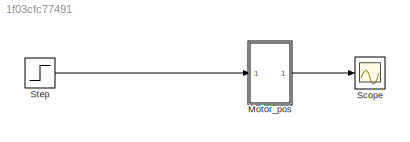
MODEL slx_1f03cfc77491
KIND model
CONFIG AbsTol = auto
CONFIG EnableMultiTasking = off
CONFIG FixedStep = auto
CONFIG MaxStep = auto
CONFIG MinStep = auto
CONFIG RelTol = 1e-3
CONFIG SampleTimeConstraint = Unconstrained
CONFIG Solver = ode15s
CONFIG SolverName = ode15s
CONFIG StartTime = 0.0
CONFIG StopTime = 0.2
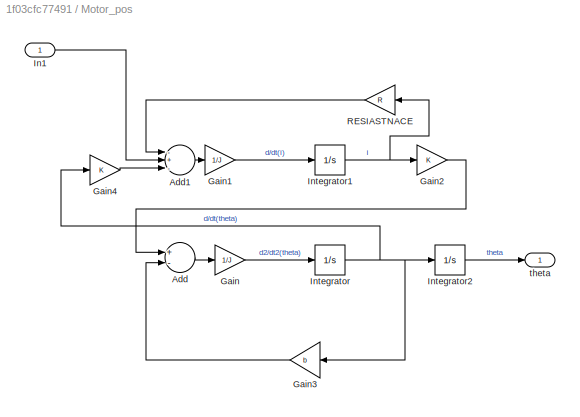
BLOCK [SubSystem] Motor_pos
  Ports = [1, 1]
  RequestExecContextInheritance = off
BLOCK [Sum] Motor_pos/Add
  InputSameDT = off
  Inputs = +-
  OutDataTypeStr = Inherit: Inherit via internal rule
  Ports = [2, 1]
  SaturateOnIntegerOverflow = off
BLOCK [Sum] Motor_pos/Add1
  InputSameDT = off
  Inputs = -+-
  OutDataTypeStr = Inherit: Inherit via internal rule
  Ports = [3, 1]
  SaturateOnIntegerOverflow = off
BLOCK [Gain] Motor_pos/Gain
  Gain = 1/J
  OutDataTypeStr = Inherit: Inherit via internal rule
  ParamDataTypeStr = Inherit: Inherit via internal rule
  SaturateOnIntegerOverflow = off
BLOCK [Gain] Motor_pos/Gain1
  Gain = 1/J
  OutDataTypeStr = Inherit: Inherit via internal rule
  ParamDataTypeStr = Inherit: Inherit via internal rule
  SaturateOnIntegerOverflow = off
BLOCK [Gain] Motor_pos/Gain2
  Gain = K
  OutDataTypeStr = Inherit: Inherit via internal rule
  ParamDataTypeStr = Inherit: Inherit via internal rule
  SaturateOnIntegerOverflow = off
BLOCK [Gain] Motor_pos/Gain3
  Gain = b
  OutDataTypeStr = Inherit: Inherit via internal rule
  ParamDataTypeStr = Inherit: Inherit via internal rule
  SaturateOnIntegerOverflow = off
BLOCK [Gain] Motor_pos/Gain4
  Gain = K
  OutDataTypeStr = Inherit: Inherit via internal rule
  ParamDataTypeStr = Inherit: Inherit via internal rule
  SaturateOnIntegerOverflow = off
BLOCK [Inport] Motor_pos/In1
  IconDisplay = Port number
BLOCK [Integrator] Motor_pos/Integrator
  Ports = [1, 1]
BLOCK [Integrator] Motor_pos/Integrator1
  Ports = [1, 1]
BLOCK [Integrator] Motor_pos/Integrator2
  Ports = [1, 1]
BLOCK [Gain] Motor_pos/RESIASTNACE
  Gain = R
  OutDataTypeStr = Inherit: Inherit via internal rule
  ParamDataTypeStr = Inherit: Inherit via internal rule
  SaturateOnIntegerOverflow = off
BLOCK [Outport] Motor_pos/theta
  IconDisplay = Port number
BLOCK [Scope] Scope
  Floating = off
  NumInputPorts = 1
  Ports = [1]
  ScopeSpecificationString = Simulink.scopes.TimeScopeBlockCfg('CurrentConfiguration', extmgr.ConfigurationSet(extmgr.Configuration('Core','General UI',true),extmgr.Configuration('Core','Source UI',true),extmgr.Configuration('Sources','WiredSimulink',true),extmgr.Configuration('Visuals','Time Domain',true,'SerializedDisplays',{struct('MinYLimReal','-0.82005','MaxYLimReal','7.38049','YLabelReal','','MinYLimMag','0.00000','MaxY...<+1384ch>
BLOCK [Step] Step
  SampleTime = 0
  Time = 0
LINE Motor_pos/Add1:1 -> Motor_pos/Gain1:1
LINE Motor_pos/Add:1 -> Motor_pos/Gain:1
LINE Motor_pos/Gain1:1 -> Motor_pos/Integrator1:1
LINE Motor_pos/Gain2:1 -> Motor_pos/Add:1
LINE Motor_pos/Gain3:1 -> Motor_pos/Add:2
LINE Motor_pos/Gain4:1 -> Motor_pos/Add1:3
LINE Motor_pos/Gain:1 -> Motor_pos/Integrator:1
LINE Motor_pos/In1:1 -> Motor_pos/Add1:2
NET Motor_pos/Integrator1:1 -> Motor_pos/Gain2:1, Motor_pos/RESIASTNACE:1
LINE Motor_pos/Integrator2:1 -> Motor_pos/theta:1
NET Motor_pos/Integrator:1 -> Motor_pos/Gain3:1, Motor_pos/Gain4:1, Motor_pos/Integrator2:1
LINE Motor_pos/RESIASTNACE:1 -> Motor_pos/Add1:1
LINE Motor_pos:1 -> Scope:1
LINE Step:1 -> Motor_pos:1
note: NET lines group one-source signal fan-out (src -> all destinations, sorted); 1:1 wires keep LINE
